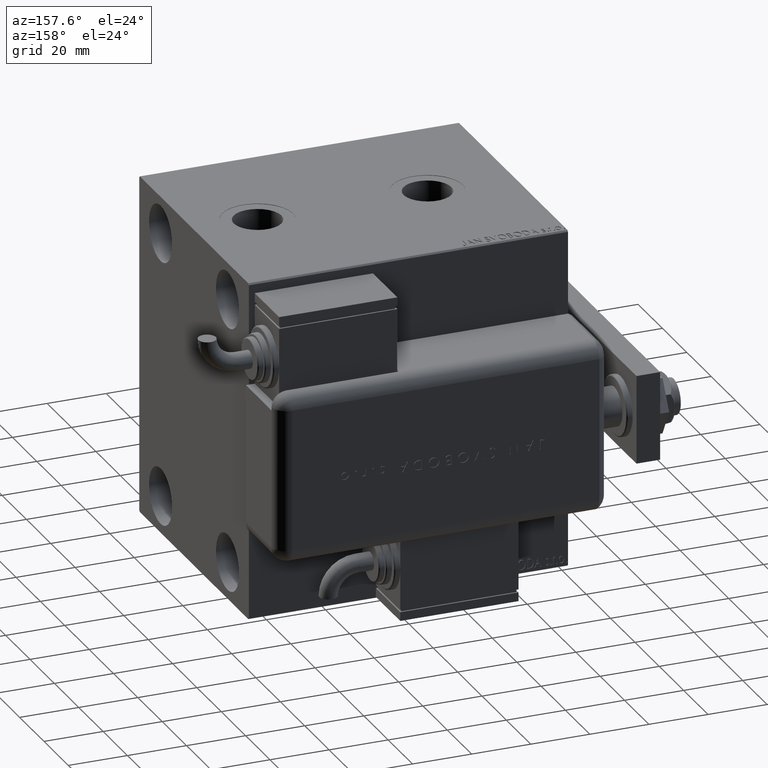
[diagram: clean part render]
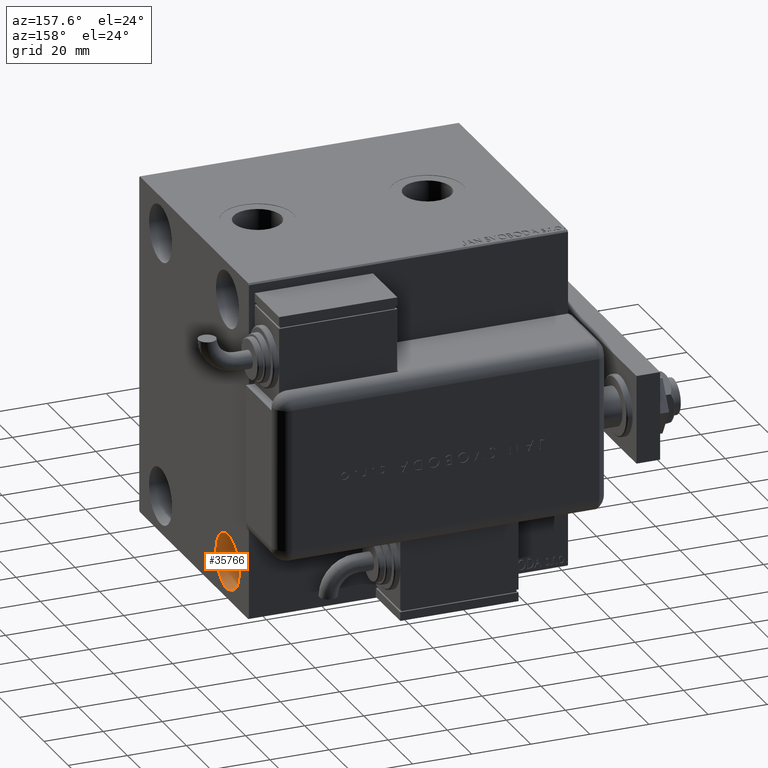
[diagram: same view with one face highlighted and labeled with its STEP entity id]
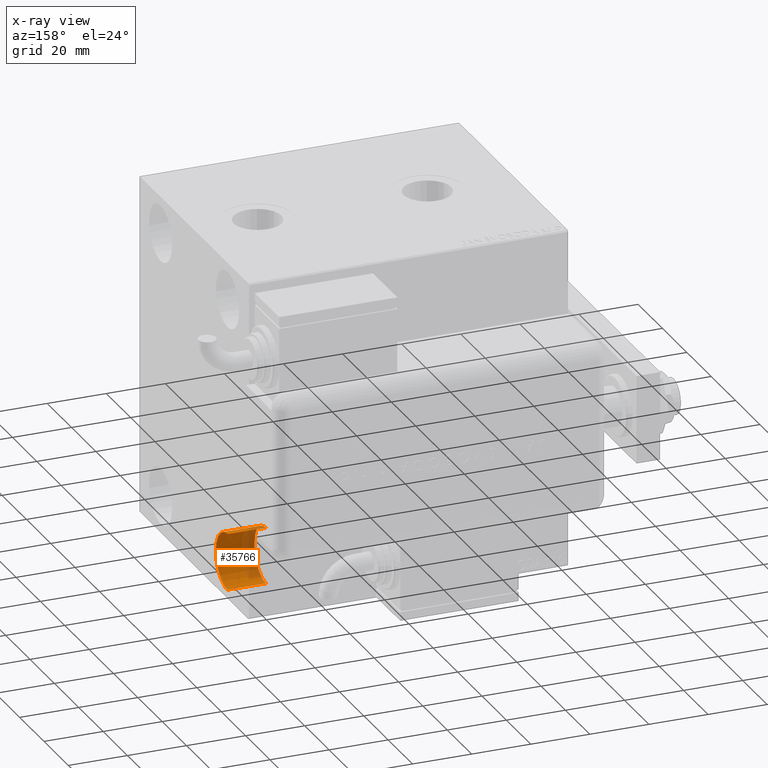
[diagram: x-ray of the same camera — body ghosted, the highlighted face saturated]
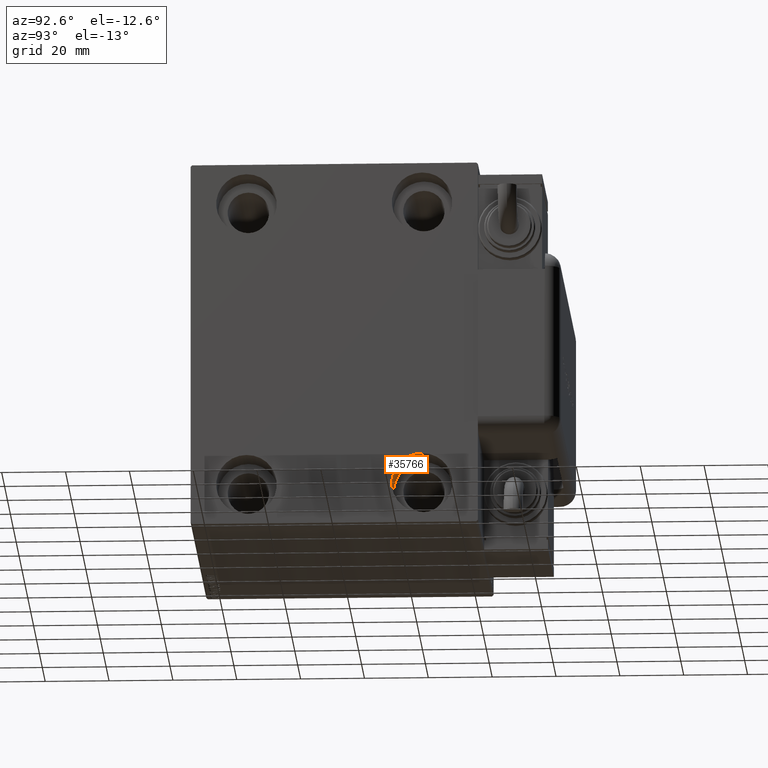
[diagram: same view with one face highlighted and labeled with its STEP entity id]
A machine part, auxiliary view. The second image highlights one B-rep face of the part: STEP entity #35766.
The next image is the same camera in x-ray: the body ghosted, the highlighted face saturated — about 30% of this face is hidden behind the body in this view.
A second angle (auxiliary view) of the same face is appended — the face is thin or edge-on in the first view.
In plain terms, the highlighted cylindrical surface (edge-blend (fillet) strip) has radius 9.5 mm, axis along (1, 0, 0).
Its self-contained STEP definition (entity closure, byte-faithful):
#626 = CYLINDRICAL_SURFACE ( 'NONE', #3931, 9.500000000000001776 ) ;
#3778 = EDGE_CURVE ( 'NONE', #16229, #45753, #24368, .T. ) ;
#3931 = AXIS2_PLACEMENT_3D ( 'NONE', #24232, #32736, #42726 ) ;
#6283 = EDGE_CURVE ( 'NONE', #45753, #19197, #47323, .T. ) ;
#7702 = ORIENTED_EDGE ( 'NONE', *, *, #3778, .T. ) ;
#11178 = CARTESIAN_POINT ( 'NONE',  ( 95.00000000000000000, 27.49999999999998934, -54.49999999999998579 ) ) ;
#13645 = DIRECTION ( 'NONE',  ( 0.000000000000000000, 0.000000000000000000, 1.000000000000000000 ) ) ;
#15660 = AXIS2_PLACEMENT_3D ( 'NONE', #35181, #34592, #44268 ) ;
#16229 = VERTEX_POINT ( 'NONE', #19427 ) ;
#17995 = EDGE_CURVE ( 'NONE', #16229, #30298, #52355, .T. ) ;
#19197 = VERTEX_POINT ( 'NONE', #30723 ) ;
#19427 = CARTESIAN_POINT ( 'NONE',  ( 95.00000000000000000, 27.49999999999998934, -54.49999999999998579 ) ) ;
#19708 = CIRCLE ( 'NONE', #35204, 9.500000000000001776 ) ;
#23373 = DIRECTION ( 'NONE',  ( 1.000000000000000000, -0.000000000000000000, -0.000000000000000000 ) ) ;
#24232 = CARTESIAN_POINT ( 'NONE',  ( 95.00000000000000000, 27.49999999999998934, -44.99999999999998579 ) ) ;
#24368 = CIRCLE ( 'NONE', #15660, 9.500000000000001776 ) ;
#25100 = ORIENTED_EDGE ( 'NONE', *, *, #6283, .T. ) ;
#30298 = VERTEX_POINT ( 'NONE', #52624 ) ;
#30723 = CARTESIAN_POINT ( 'NONE',  ( 108.0000000000000000, 27.49999999999998934, -35.49999999999998579 ) ) ;
#32682 = ORIENTED_EDGE ( 'NONE', *, *, #42028, .F. ) ;
#32736 = DIRECTION ( 'NONE',  ( 1.000000000000000000, -0.000000000000000000, -0.000000000000000000 ) ) ;
#34592 = DIRECTION ( 'NONE',  ( -1.000000000000000000, -0.000000000000000000, -0.000000000000000000 ) ) ;
#35181 = CARTESIAN_POINT ( 'NONE',  ( 95.00000000000000000, 27.49999999999998934, -44.99999999999998579 ) ) ;
#35204 = AXIS2_PLACEMENT_3D ( 'NONE', #35506, #36697, #13645 ) ;
#35506 = CARTESIAN_POINT ( 'NONE',  ( 108.0000000000000000, 27.49999999999998934, -44.99999999999998579 ) ) ;
#35766 = ADVANCED_FACE ( 'NONE', ( #36971 ), #626, .F. ) ;
#36697 = DIRECTION ( 'NONE',  ( -1.000000000000000000, -0.000000000000000000, -0.000000000000000000 ) ) ;
#36971 = FACE_OUTER_BOUND ( 'NONE', #37833, .T. ) ;
#37833 = EDGE_LOOP ( 'NONE', ( #7702, #25100, #32682, #38011 ) ) ;
#38011 = ORIENTED_EDGE ( 'NONE', *, *, #17995, .F. ) ;
#42028 = EDGE_CURVE ( 'NONE', #30298, #19197, #19708, .T. ) ;
#42726 = DIRECTION ( 'NONE',  ( 0.000000000000000000, 0.000000000000000000, -1.000000000000000000 ) ) ;
#43900 = DIRECTION ( 'NONE',  ( 1.000000000000000000, -0.000000000000000000, -0.000000000000000000 ) ) ;
#44268 = DIRECTION ( 'NONE',  ( 0.000000000000000000, 0.000000000000000000, 1.000000000000000000 ) ) ;
#44766 = VECTOR ( 'NONE', #23373, 1000.000000000000000 ) ;
#45753 = VERTEX_POINT ( 'NONE', #56749 ) ;
#47323 = LINE ( 'NONE', #55456, #44766 ) ;
#52355 = LINE ( 'NONE', #11178, #52370 ) ;
#52370 = VECTOR ( 'NONE', #43900, 1000.000000000000000 ) ;
#52624 = CARTESIAN_POINT ( 'NONE',  ( 108.0000000000000000, 27.49999999999998934, -54.49999999999998579 ) ) ;
#55456 = CARTESIAN_POINT ( 'NONE',  ( 95.00000000000000000, 27.49999999999998934, -35.49999999999998579 ) ) ;
#56749 = CARTESIAN_POINT ( 'NONE',  ( 95.00000000000000000, 27.49999999999998934, -35.49999999999998579 ) ) ;